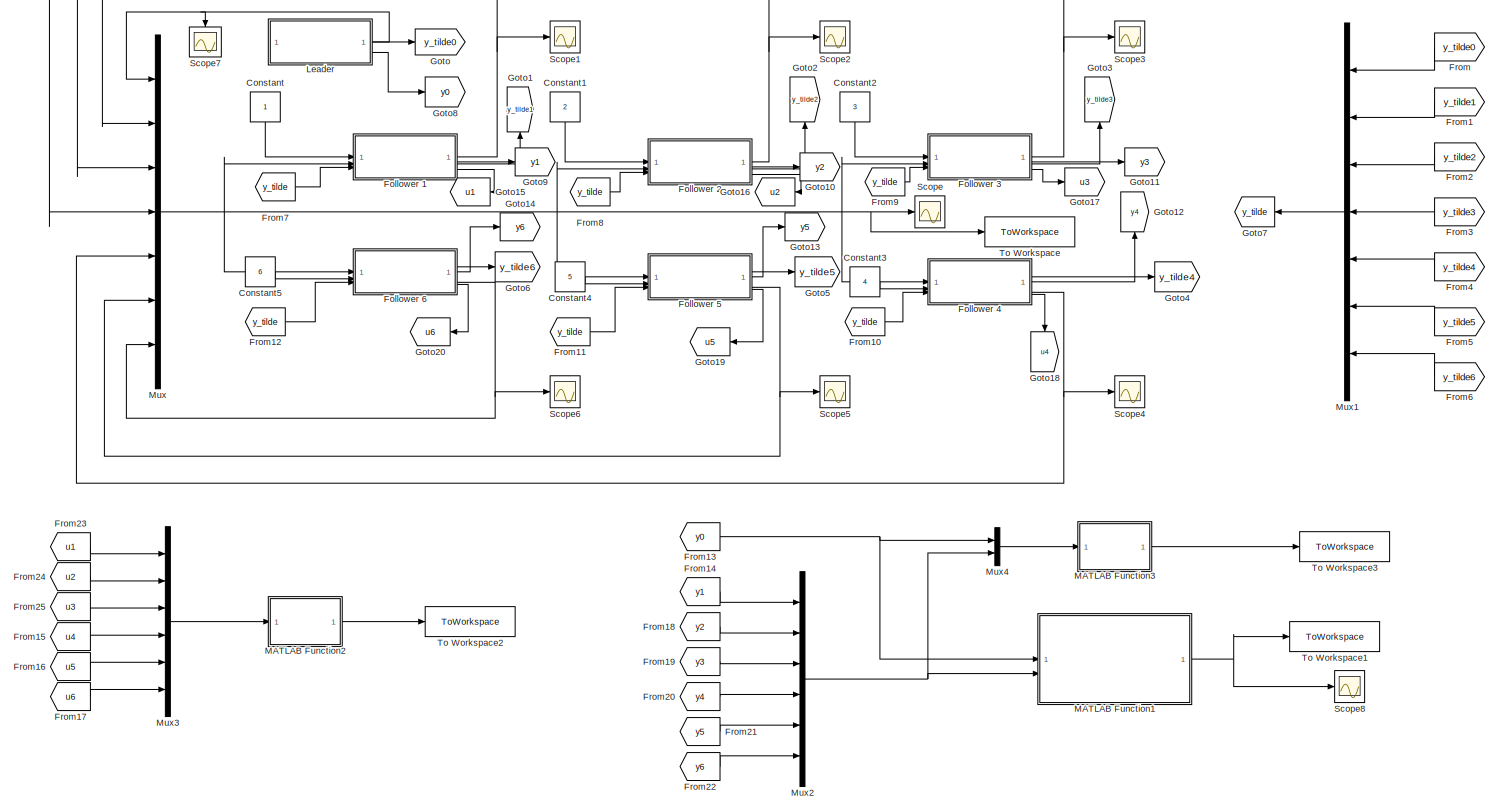
[diagram: root canvas - part 1/1, most of the canvas]
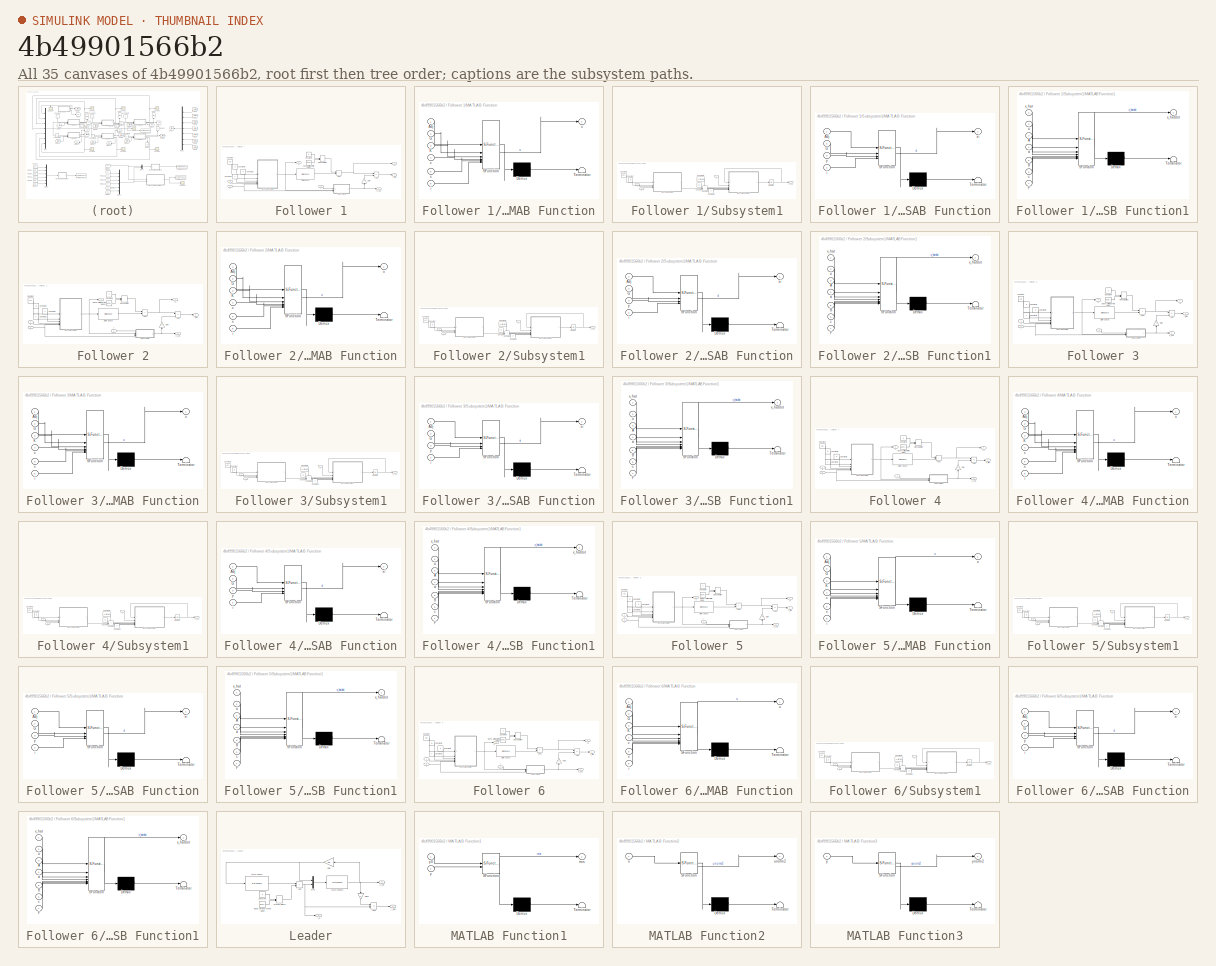
[diagram: thumbnail index - all 35 canvases of the model, root first then tree order]
MODEL slx_4b49901566b2
KIND model
CONFIG AbsTol = auto
CONFIG EnableMultiTasking = off
CONFIG FixedStep = auto
CONFIG MaxStep = auto
CONFIG MinStep = auto
CONFIG RelTol = 1e-3
CONFIG SampleTimeConstraint = Unconstrained
CONFIG SolverName = VariableStepAuto
CONFIG StartTime = 0.0
CONFIG StopTime = tfin
BLOCK [Constant] Constant
  NameLocation = left
BLOCK [Constant] Constant1
  NameLocation = left
  Value = 2
BLOCK [Constant] Constant2
  NameLocation = left
  Value = 3
BLOCK [Constant] Constant3
  Value = 4
BLOCK [Constant] Constant4
  Value = 5
BLOCK [Constant] Constant5
  Value = 6
BLOCK [SubSystem] Follower 1
BLOCK [Sum] Follower 1/Add
  IconShape = rectangular
  Inputs = +-
BLOCK [Sum] Follower 1/Add1
  IconShape = rectangular
BLOCK [Reference] Follower 1/Band-Limited White Noise  REF=simulink/Sources/Band-Limited
White Noise
  SourceBlock = simulink/Sources/Band-Limited\nWhite Noise
  SourceType = Band-Limited White Noise.
BLOCK [Constant] Follower 1/Constant
  Value = Adj
  VectorParams1D = off
BLOCK [Constant] Follower 1/Constant1
  Value = c
BLOCK [Constant] Follower 1/Constant2
  Value = K
  VectorParams1D = off
BLOCK [Constant] Follower 1/Constant3
  Value = G
BLOCK [Constant] Follower 1/Constant4
  Value = 0
BLOCK [Gain] Follower 1/Gain
  Gain = C
  Multiplication = Matrix(K*u)
  NameLocation = right
BLOCK [SubSystem] Follower 1/MATLAB Function
  ErrorFcn = Stateflow.Translate.translate
  PermitHierarchicalResolution = ExplicitOnly
  SFBlockType = MATLAB Function
  TreatAsAtomicUnit = on
BLOCK [Demux] Follower 1/MATLAB Function/ Demux 
  Outputs = 1
BLOCK [S-Function] Follower 1/MATLAB Function/ SFunction 
  EnableBusSupport = on
  FunctionName = sf_sfun
  PortCounts = [6 2]
  SFcnIsStateOwnerBlock = off
  SFunctionDeploymentMode = off
  Tag = Stateflow S-Function 1
BLOCK [Terminator] Follower 1/MATLAB Function/ Terminator 
BLOCK [Inport] Follower 1/MATLAB Function/Adj
BLOCK [Inport] Follower 1/MATLAB Function/G
  Port = 2
BLOCK [Inport] Follower 1/MATLAB Function/K
  Port = 3
BLOCK [Inport] Follower 1/MATLAB Function/c
  Port = 4
BLOCK [Inport] Follower 1/MATLAB Function/i
  Port = 6
BLOCK [Outport] Follower 1/MATLAB Function/u
BLOCK [Inport] Follower 1/MATLAB Function/x
  Port = 5
BLOCK [ManualSwitch] Follower 1/Manual Switch
  CurrentSetting = 0
BLOCK [StateSpace] Follower 1/State-Space
  A = A-B*Ko
  B = B
  C = C
  D = 0
  InitialCondition = xi_0
BLOCK [SubSystem] Follower 1/Subsystem1
BLOCK [Constant] Follower 1/Subsystem1/Constant
  Value = G
  VectorParams1D = off
BLOCK [Constant] Follower 1/Subsystem1/Constant1
  Value = Adj
BLOCK [Constant] Follower 1/Subsystem1/Constant2
  Value = A-B*Ko
  VectorParams1D = off
BLOCK [Constant] Follower 1/Subsystem1/Constant3
  Value = c
BLOCK [Constant] Follower 1/Subsystem1/Constant4
  Value = F
  VectorParams1D = off
BLOCK [Constant] Follower 1/Subsystem1/Constant5
  Value = B
  VectorParams1D = off
BLOCK [Integrator] Follower 1/Subsystem1/Integrator
  InitialCondition = [0 0]'
BLOCK [SubSystem] Follower 1/Subsystem1/MATLAB Function
  ErrorFcn = Stateflow.Translate.translate
  PermitHierarchicalResolution = ExplicitOnly
  SFBlockType = MATLAB Function
  TreatAsAtomicUnit = on
BLOCK [Demux] Follower 1/Subsystem1/MATLAB Function/ Demux 
  Outputs = 1
BLOCK [S-Function] Follower 1/Subsystem1/MATLAB Function/ SFunction 
  EnableBusSupport = on
  FunctionName = sf_sfun
  PortCounts = [4 2]
  SFcnIsStateOwnerBlock = off
  SFunctionDeploymentMode = off
  Tag = Stateflow S-Function 2
BLOCK [Terminator] Follower 1/Subsystem1/MATLAB Function/ Terminator 
BLOCK [Inport] Follower 1/Subsystem1/MATLAB Function/Adj
BLOCK [Inport] Follower 1/Subsystem1/MATLAB Function/G
  Port = 2
BLOCK [Inport] Follower 1/Subsystem1/MATLAB Function/i
  Port = 4
BLOCK [Outport] Follower 1/Subsystem1/MATLAB Function/xi
BLOCK [Inport] Follower 1/Subsystem1/MATLAB Function/y
  Port = 3
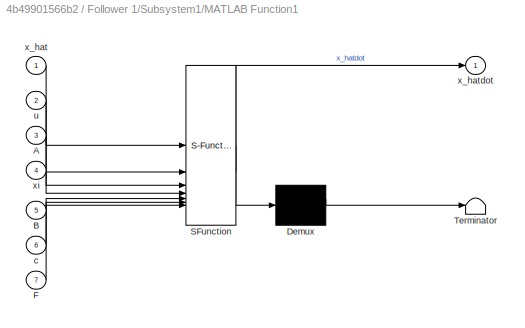
BLOCK [SubSystem] Follower 1/Subsystem1/MATLAB Function1
  ErrorFcn = Stateflow.Translate.translate
  PermitHierarchicalResolution = ExplicitOnly
  SFBlockType = MATLAB Function
  TreatAsAtomicUnit = on
BLOCK [Demux] Follower 1/Subsystem1/MATLAB Function1/ Demux 
  Outputs = 1
BLOCK [S-Function] Follower 1/Subsystem1/MATLAB Function1/ SFunction 
  EnableBusSupport = on
  FunctionName = sf_sfun
  PortCounts = [7 2]
  SFcnIsStateOwnerBlock = off
  SFunctionDeploymentMode = off
  Tag = Stateflow S-Function 13
BLOCK [Terminator] Follower 1/Subsystem1/MATLAB Function1/ Terminator 
BLOCK [Inport] Follower 1/Subsystem1/MATLAB Function1/A
  Port = 3
BLOCK [Inport] Follower 1/Subsystem1/MATLAB Function1/B
  Port = 5
BLOCK [Inport] Follower 1/Subsystem1/MATLAB Function1/F
  Port = 7
BLOCK [Inport] Follower 1/Subsystem1/MATLAB Function1/c
  Port = 6
BLOCK [Inport] Follower 1/Subsystem1/MATLAB Function1/u
  Port = 2
BLOCK [Inport] Follower 1/Subsystem1/MATLAB Function1/x_hat
BLOCK [Outport] Follower 1/Subsystem1/MATLAB Function1/x_hatdot
BLOCK [Inport] Follower 1/Subsystem1/MATLAB Function1/xi
  Port = 4
BLOCK [Inport] Follower 1/Subsystem1/i
  Port = 3
BLOCK [Inport] Follower 1/Subsystem1/u
  Port = 2
BLOCK [Outport] Follower 1/Subsystem1/x_hat
BLOCK [Inport] Follower 1/Subsystem1/y
BLOCK [Inport] Follower 1/i
BLOCK [Outport] Follower 1/u
  Port = 4
BLOCK [Inport] Follower 1/x
  Port = 2
BLOCK [Outport] Follower 1/x_hat
BLOCK [Inport] Follower 1/y
  Port = 3
BLOCK [Outport] Follower 1/y1
  Port = 3
BLOCK [Outport] Follower 1/y_tilde
  Port = 2
BLOCK [SubSystem] Follower 2
BLOCK [Sum] Follower 2/Add
  IconShape = rectangular
  Inputs = +-
BLOCK [Sum] Follower 2/Add1
  IconShape = rectangular
BLOCK [Reference] Follower 2/Band-Limited White Noise1  REF=simulink/Sources/Band-Limited
White Noise
  SourceBlock = simulink/Sources/Band-Limited\nWhite Noise
  SourceType = Band-Limited White Noise.
BLOCK [Constant] Follower 2/Constant
  Value = Adj
  VectorParams1D = off
BLOCK [Constant] Follower 2/Constant1
  Value = c
BLOCK [Constant] Follower 2/Constant2
  Value = K
  VectorParams1D = off
BLOCK [Constant] Follower 2/Constant3
  Value = G
BLOCK [Constant] Follower 2/Constant4
  Value = 0
BLOCK [Gain] Follower 2/Gain
  Gain = C
  Multiplication = Matrix(K*u)
  NameLocation = right
BLOCK [SubSystem] Follower 2/MATLAB Function
  ErrorFcn = Stateflow.Translate.translate
  PermitHierarchicalResolution = ExplicitOnly
  SFBlockType = MATLAB Function
  TreatAsAtomicUnit = on
BLOCK [Demux] Follower 2/MATLAB Function/ Demux 
  Outputs = 1
BLOCK [S-Function] Follower 2/MATLAB Function/ SFunction 
  EnableBusSupport = on
  FunctionName = sf_sfun
  PortCounts = [6 2]
  SFcnIsStateOwnerBlock = off
  SFunctionDeploymentMode = off
  Tag = Stateflow S-Function 19
BLOCK [Terminator] Follower 2/MATLAB Function/ Terminator 
BLOCK [Inport] Follower 2/MATLAB Function/Adj
BLOCK [Inport] Follower 2/MATLAB Function/G
  Port = 2
BLOCK [Inport] Follower 2/MATLAB Function/K
  Port = 3
BLOCK [Inport] Follower 2/MATLAB Function/c
  Port = 4
BLOCK [Inport] Follower 2/MATLAB Function/i
  Port = 6
BLOCK [Outport] Follower 2/MATLAB Function/u
BLOCK [Inport] Follower 2/MATLAB Function/x
  Port = 5
BLOCK [ManualSwitch] Follower 2/Manual Switch
  CurrentSetting = 0
BLOCK [StateSpace] Follower 2/State-Space
  A = A-B*Ko
  B = B
  C = C
  D = 0
  InitialCondition = xi_0
BLOCK [SubSystem] Follower 2/Subsystem1
BLOCK [Constant] Follower 2/Subsystem1/Constant
  Value = G
  VectorParams1D = off
BLOCK [Constant] Follower 2/Subsystem1/Constant1
  Value = Adj
BLOCK [Constant] Follower 2/Subsystem1/Constant2
  Value = A-B*Ko
  VectorParams1D = off
BLOCK [Constant] Follower 2/Subsystem1/Constant3
  Value = c
BLOCK [Constant] Follower 2/Subsystem1/Constant4
  Value = F
  VectorParams1D = off
BLOCK [Constant] Follower 2/Subsystem1/Constant5
  Value = B
  VectorParams1D = off
BLOCK [Integrator] Follower 2/Subsystem1/Integrator
  InitialCondition = [0 0]'
BLOCK [SubSystem] Follower 2/Subsystem1/MATLAB Function
  ErrorFcn = Stateflow.Translate.translate
  PermitHierarchicalResolution = ExplicitOnly
  SFBlockType = MATLAB Function
  TreatAsAtomicUnit = on
BLOCK [Demux] Follower 2/Subsystem1/MATLAB Function/ Demux 
  Outputs = 1
BLOCK [S-Function] Follower 2/Subsystem1/MATLAB Function/ SFunction 
  EnableBusSupport = on
  FunctionName = sf_sfun
  PortCounts = [4 2]
  SFcnIsStateOwnerBlock = off
  SFunctionDeploymentMode = off
  Tag = Stateflow S-Function 20
BLOCK [Terminator] Follower 2/Subsystem1/MATLAB Function/ Terminator 
BLOCK [Inport] Follower 2/Subsystem1/MATLAB Function/Adj
BLOCK [Inport] Follower 2/Subsystem1/MATLAB Function/G
  Port = 2
BLOCK [Inport] Follower 2/Subsystem1/MATLAB Function/i
  Port = 4
BLOCK [Outport] Follower 2/Subsystem1/MATLAB Function/xi
BLOCK [Inport] Follower 2/Subsystem1/MATLAB Function/y
  Port = 3
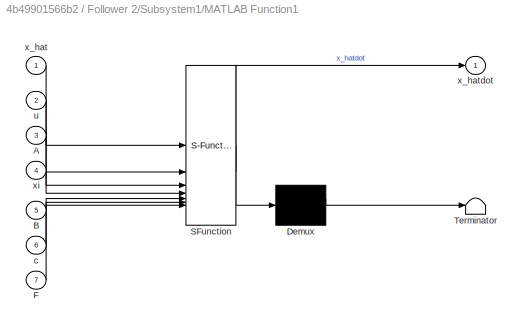
BLOCK [SubSystem] Follower 2/Subsystem1/MATLAB Function1
  ErrorFcn = Stateflow.Translate.translate
  PermitHierarchicalResolution = ExplicitOnly
  SFBlockType = MATLAB Function
  TreatAsAtomicUnit = on
BLOCK [Demux] Follower 2/Subsystem1/MATLAB Function1/ Demux 
  Outputs = 1
BLOCK [S-Function] Follower 2/Subsystem1/MATLAB Function1/ SFunction 
  EnableBusSupport = on
  FunctionName = sf_sfun
  PortCounts = [7 2]
  SFcnIsStateOwnerBlock = off
  SFunctionDeploymentMode = off
  Tag = Stateflow S-Function 21
BLOCK [Terminator] Follower 2/Subsystem1/MATLAB Function1/ Terminator 
BLOCK [Inport] Follower 2/Subsystem1/MATLAB Function1/A
  Port = 3
BLOCK [Inport] Follower 2/Subsystem1/MATLAB Function1/B
  Port = 5
BLOCK [Inport] Follower 2/Subsystem1/MATLAB Function1/F
  Port = 7
BLOCK [Inport] Follower 2/Subsystem1/MATLAB Function1/c
  Port = 6
BLOCK [Inport] Follower 2/Subsystem1/MATLAB Function1/u
  Port = 2
BLOCK [Inport] Follower 2/Subsystem1/MATLAB Function1/x_hat
BLOCK [Outport] Follower 2/Subsystem1/MATLAB Function1/x_hatdot
BLOCK [Inport] Follower 2/Subsystem1/MATLAB Function1/xi
  Port = 4
BLOCK [Inport] Follower 2/Subsystem1/i
  Port = 3
BLOCK [Inport] Follower 2/Subsystem1/u
  Port = 2
BLOCK [Outport] Follower 2/Subsystem1/x_hat
BLOCK [Inport] Follower 2/Subsystem1/y
BLOCK [Inport] Follower 2/i
BLOCK [Outport] Follower 2/u
  Port = 4
BLOCK [Inport] Follower 2/x
  Port = 2
BLOCK [Outport] Follower 2/x_hat
BLOCK [Inport] Follower 2/y
  Port = 3
BLOCK [Outport] Follower 2/y2
  Port = 3
BLOCK [Outport] Follower 2/y_tilde
  Port = 2
BLOCK [SubSystem] Follower 3
BLOCK [Sum] Follower 3/Add
  IconShape = rectangular
  Inputs = +-
BLOCK [Sum] Follower 3/Add1
  IconShape = rectangular
BLOCK [Reference] Follower 3/Band-Limited White Noise  REF=simulink/Sources/Band-Limited
White Noise
  SourceBlock = simulink/Sources/Band-Limited\nWhite Noise
  SourceType = Band-Limited White Noise.
BLOCK [Constant] Follower 3/Constant
  Value = Adj
  VectorParams1D = off
BLOCK [Constant] Follower 3/Constant1
  Value = c
BLOCK [Constant] Follower 3/Constant2
  Value = K
  VectorParams1D = off
BLOCK [Constant] Follower 3/Constant3
  Value = G
BLOCK [Constant] Follower 3/Constant4
  Value = 0
BLOCK [Gain] Follower 3/Gain
  Gain = C
  Multiplication = Matrix(K*u)
  NameLocation = right
BLOCK [SubSystem] Follower 3/MATLAB Function
  ErrorFcn = Stateflow.Translate.translate
  PermitHierarchicalResolution = ExplicitOnly
  SFBlockType = MATLAB Function
  TreatAsAtomicUnit = on
BLOCK [Demux] Follower 3/MATLAB Function/ Demux 
  Outputs = 1
BLOCK [S-Function] Follower 3/MATLAB Function/ SFunction 
  EnableBusSupport = on
  FunctionName = sf_sfun
  PortCounts = [6 2]
  SFcnIsStateOwnerBlock = off
  SFunctionDeploymentMode = off
  Tag = Stateflow S-Function 3
BLOCK [Terminator] Follower 3/MATLAB Function/ Terminator 
BLOCK [Inport] Follower 3/MATLAB Function/Adj
BLOCK [Inport] Follower 3/MATLAB Function/G
  Port = 2
BLOCK [Inport] Follower 3/MATLAB Function/K
  Port = 3
BLOCK [Inport] Follower 3/MATLAB Function/c
  Port = 4
BLOCK [Inport] Follower 3/MATLAB Function/i
  Port = 6
BLOCK [Outport] Follower 3/MATLAB Function/u
BLOCK [Inport] Follower 3/MATLAB Function/x
  Port = 5
BLOCK [ManualSwitch] Follower 3/Manual Switch
  CurrentSetting = 0
BLOCK [StateSpace] Follower 3/State-Space
  A = A-B*Ko
  B = B
  C = C
  D = 0
  InitialCondition = xi_0
BLOCK [SubSystem] Follower 3/Subsystem1
BLOCK [Constant] Follower 3/Subsystem1/Constant
  Value = G
  VectorParams1D = off
BLOCK [Constant] Follower 3/Subsystem1/Constant1
  Value = Adj
BLOCK [Constant] Follower 3/Subsystem1/Constant2
  Value = A-B*Ko
  VectorParams1D = off
BLOCK [Constant] Follower 3/Subsystem1/Constant3
  Value = c
BLOCK [Constant] Follower 3/Subsystem1/Constant4
  Value = F
  VectorParams1D = off
BLOCK [Constant] Follower 3/Subsystem1/Constant5
  Value = B
  VectorParams1D = off
BLOCK [Integrator] Follower 3/Subsystem1/Integrator
  InitialCondition = [0 0]'
BLOCK [SubSystem] Follower 3/Subsystem1/MATLAB Function
  ErrorFcn = Stateflow.Translate.translate
  PermitHierarchicalResolution = ExplicitOnly
  SFBlockType = MATLAB Function
  TreatAsAtomicUnit = on
BLOCK [Demux] Follower 3/Subsystem1/MATLAB Function/ Demux 
  Outputs = 1
BLOCK [S-Function] Follower 3/Subsystem1/MATLAB Function/ SFunction 
  EnableBusSupport = on
  FunctionName = sf_sfun
  PortCounts = [4 2]
  SFcnIsStateOwnerBlock = off
  SFunctionDeploymentMode = off
  Tag = Stateflow S-Function 4
BLOCK [Terminator] Follower 3/Subsystem1/MATLAB Function/ Terminator 
BLOCK [Inport] Follower 3/Subsystem1/MATLAB Function/Adj
BLOCK [Inport] Follower 3/Subsystem1/MATLAB Function/G
  Port = 2
BLOCK [Inport] Follower 3/Subsystem1/MATLAB Function/i
  Port = 4
BLOCK [Outport] Follower 3/Subsystem1/MATLAB Function/xi
BLOCK [Inport] Follower 3/Subsystem1/MATLAB Function/y
  Port = 3
BLOCK [SubSystem] Follower 3/Subsystem1/MATLAB Function1
  ErrorFcn = Stateflow.Translate.translate
  PermitHierarchicalResolution = ExplicitOnly
  SFBlockType = MATLAB Function
  TreatAsAtomicUnit = on
BLOCK [Demux] Follower 3/Subsystem1/MATLAB Function1/ Demux 
  Outputs = 1
BLOCK [S-Function] Follower 3/Subsystem1/MATLAB Function1/ SFunction 
  EnableBusSupport = on
  FunctionName = sf_sfun
  PortCounts = [7 2]
  SFcnIsStateOwnerBlock = off
  SFunctionDeploymentMode = off
  Tag = Stateflow S-Function 5
BLOCK [Terminator] Follower 3/Subsystem1/MATLAB Function1/ Terminator 
BLOCK [Inport] Follower 3/Subsystem1/MATLAB Function1/A
  Port = 3
BLOCK [Inport] Follower 3/Subsystem1/MATLAB Function1/B
  Port = 5
BLOCK [Inport] Follower 3/Subsystem1/MATLAB Function1/F
  Port = 7
BLOCK [Inport] Follower 3/Subsystem1/MATLAB Function1/c
  Port = 6
BLOCK [Inport] Follower 3/Subsystem1/MATLAB Function1/u
  Port = 2
BLOCK [Inport] Follower 3/Subsystem1/MATLAB Function1/x_hat
BLOCK [Outport] Follower 3/Subsystem1/MATLAB Function1/x_hatdot
BLOCK [Inport] Follower 3/Subsystem1/MATLAB Function1/xi
  Port = 4
BLOCK [Inport] Follower 3/Subsystem1/i
  Port = 3
BLOCK [Inport] Follower 3/Subsystem1/u
  Port = 2
BLOCK [Outport] Follower 3/Subsystem1/x_hat
BLOCK [Inport] Follower 3/Subsystem1/y
BLOCK [Inport] Follower 3/i
BLOCK [Outport] Follower 3/u
  Port = 4
BLOCK [Inport] Follower 3/x
  Port = 2
BLOCK [Outport] Follower 3/x_hat
BLOCK [Inport] Follower 3/y
  Port = 3
BLOCK [Outport] Follower 3/y3
  Port = 3
BLOCK [Outport] Follower 3/y_tilde
  Port = 2
BLOCK [SubSystem] Follower 4
BLOCK [Sum] Follower 4/Add
  IconShape = rectangular
  Inputs = +-
BLOCK [Sum] Follower 4/Add1
  IconShape = rectangular
BLOCK [Reference] Follower 4/Band-Limited White Noise  REF=simulink/Sources/Band-Limited
White Noise
  SourceBlock = simulink/Sources/Band-Limited\nWhite Noise
  SourceType = Band-Limited White Noise.
BLOCK [Constant] Follower 4/Constant
  Value = Adj
  VectorParams1D = off
BLOCK [Constant] Follower 4/Constant1
  Value = c
BLOCK [Constant] Follower 4/Constant2
  Value = K
  VectorParams1D = off
BLOCK [Constant] Follower 4/Constant3
  Value = G
BLOCK [Constant] Follower 4/Constant4
  Value = 0
BLOCK [Gain] Follower 4/Gain
  Gain = C
  Multiplication = Matrix(K*u)
  NameLocation = right
BLOCK [SubSystem] Follower 4/MATLAB Function
  ErrorFcn = Stateflow.Translate.translate
  PermitHierarchicalResolution = ExplicitOnly
  SFBlockType = MATLAB Function
  TreatAsAtomicUnit = on
BLOCK [Demux] Follower 4/MATLAB Function/ Demux 
  Outputs = 1
BLOCK [S-Function] Follower 4/MATLAB Function/ SFunction 
  EnableBusSupport = on
  FunctionName = sf_sfun
  PortCounts = [6 2]
  SFcnIsStateOwnerBlock = off
  SFunctionDeploymentMode = off
  Tag = Stateflow S-Function 6
BLOCK [Terminator] Follower 4/MATLAB Function/ Terminator 
BLOCK [Inport] Follower 4/MATLAB Function/Adj
BLOCK [Inport] Follower 4/MATLAB Function/G
  Port = 2
BLOCK [Inport] Follower 4/MATLAB Function/K
  Port = 3
BLOCK [Inport] Follower 4/MATLAB Function/c
  Port = 4
BLOCK [Inport] Follower 4/MATLAB Function/i
  Port = 6
BLOCK [Outport] Follower 4/MATLAB Function/u
BLOCK [Inport] Follower 4/MATLAB Function/x
  Port = 5
BLOCK [ManualSwitch] Follower 4/Manual Switch
  CurrentSetting = 0
BLOCK [StateSpace] Follower 4/State-Space
  A = A-B*Ko
  B = B
  C = C
  D = 0
  InitialCondition = xi_0
BLOCK [SubSystem] Follower 4/Subsystem1
BLOCK [Constant] Follower 4/Subsystem1/Constant
  Value = G
  VectorParams1D = off
BLOCK [Constant] Follower 4/Subsystem1/Constant1
  Value = Adj
BLOCK [Constant] Follower 4/Subsystem1/Constant2
  Value = A-B*Ko
  VectorParams1D = off
BLOCK [Constant] Follower 4/Subsystem1/Constant3
  Value = c
BLOCK [Constant] Follower 4/Subsystem1/Constant4
  Value = F
  VectorParams1D = off
BLOCK [Constant] Follower 4/Subsystem1/Constant5
  Value = B
  VectorParams1D = off
BLOCK [Integrator] Follower 4/Subsystem1/Integrator
  InitialCondition = [0 0]'
BLOCK [SubSystem] Follower 4/Subsystem1/MATLAB Function
  ErrorFcn = Stateflow.Translate.translate
  PermitHierarchicalResolution = ExplicitOnly
  SFBlockType = MATLAB Function
  TreatAsAtomicUnit = on
BLOCK [Demux] Follower 4/Subsystem1/MATLAB Function/ Demux 
  Outputs = 1
BLOCK [S-Function] Follower 4/Subsystem1/MATLAB Function/ SFunction 
  EnableBusSupport = on
  FunctionName = sf_sfun
  PortCounts = [4 2]
  SFcnIsStateOwnerBlock = off
  SFunctionDeploymentMode = off
  Tag = Stateflow S-Function 7
BLOCK [Terminator] Follower 4/Subsystem1/MATLAB Function/ Terminator 
BLOCK [Inport] Follower 4/Subsystem1/MATLAB Function/Adj
BLOCK [Inport] Follower 4/Subsystem1/MATLAB Function/G
  Port = 2
BLOCK [Inport] Follower 4/Subsystem1/MATLAB Function/i
  Port = 4
BLOCK [Outport] Follower 4/Subsystem1/MATLAB Function/xi
BLOCK [Inport] Follower 4/Subsystem1/MATLAB Function/y
  Port = 3
BLOCK [SubSystem] Follower 4/Subsystem1/MATLAB Function1
  ErrorFcn = Stateflow.Translate.translate
  PermitHierarchicalResolution = ExplicitOnly
  SFBlockType = MATLAB Function
  TreatAsAtomicUnit = on
BLOCK [Demux] Follower 4/Subsystem1/MATLAB Function1/ Demux 
  Outputs = 1
BLOCK [S-Function] Follower 4/Subsystem1/MATLAB Function1/ SFunction 
  EnableBusSupport = on
  FunctionName = sf_sfun
  PortCounts = [7 2]
  SFcnIsStateOwnerBlock = off
  SFunctionDeploymentMode = off
  Tag = Stateflow S-Function 8
BLOCK [Terminator] Follower 4/Subsystem1/MATLAB Function1/ Terminator 
BLOCK [Inport] Follower 4/Subsystem1/MATLAB Function1/A
  Port = 3
BLOCK [Inport] Follower 4/Subsystem1/MATLAB Function1/B
  Port = 5
BLOCK [Inport] Follower 4/Subsystem1/MATLAB Function1/F
  Port = 7
BLOCK [Inport] Follower 4/Subsystem1/MATLAB Function1/c
  Port = 6
BLOCK [Inport] Follower 4/Subsystem1/MATLAB Function1/u
  Port = 2
BLOCK [Inport] Follower 4/Subsystem1/MATLAB Function1/x_hat
BLOCK [Outport] Follower 4/Subsystem1/MATLAB Function1/x_hatdot
BLOCK [Inport] Follower 4/Subsystem1/MATLAB Function1/xi
  Port = 4
BLOCK [Inport] Follower 4/Subsystem1/i
  Port = 3
BLOCK [Inport] Follower 4/Subsystem1/u
  Port = 2
BLOCK [Outport] Follower 4/Subsystem1/x_hat
BLOCK [Inport] Follower 4/Subsystem1/y
BLOCK [Inport] Follower 4/i
  Port = 2
BLOCK [Outport] Follower 4/u
  Port = 4
BLOCK [Inport] Follower 4/x
BLOCK [Outport] Follower 4/x_hat
  Port = 3
BLOCK [Inport] Follower 4/y
  Port = 3
BLOCK [Outport] Follower 4/y4
BLOCK [Outport] Follower 4/y_tilde
  Port = 2
BLOCK [SubSystem] Follower 5
BLOCK [Sum] Follower 5/Add
  IconShape = rectangular
  Inputs = +-
BLOCK [Sum] Follower 5/Add1
  IconShape = rectangular
BLOCK [Reference] Follower 5/Band-Limited White Noise  REF=simulink/Sources/Band-Limited
White Noise
  SourceBlock = simulink/Sources/Band-Limited\nWhite Noise
  SourceType = Band-Limited White Noise.
BLOCK [Constant] Follower 5/Constant
  Value = Adj
  VectorParams1D = off
BLOCK [Constant] Follower 5/Constant1
  Value = c
BLOCK [Constant] Follower 5/Constant2
  Value = K
  VectorParams1D = off
BLOCK [Constant] Follower 5/Constant3
  Value = G
BLOCK [Constant] Follower 5/Constant4
  Value = 0
BLOCK [Gain] Follower 5/Gain
  Gain = C
  Multiplication = Matrix(K*u)
  NameLocation = right
BLOCK [SubSystem] Follower 5/MATLAB Function
  ErrorFcn = Stateflow.Translate.translate
  PermitHierarchicalResolution = ExplicitOnly
  SFBlockType = MATLAB Function
  TreatAsAtomicUnit = on
BLOCK [Demux] Follower 5/MATLAB Function/ Demux 
  Outputs = 1
BLOCK [S-Function] Follower 5/MATLAB Function/ SFunction 
  EnableBusSupport = on
  FunctionName = sf_sfun
  PortCounts = [6 2]
  SFcnIsStateOwnerBlock = off
  SFunctionDeploymentMode = off
  Tag = Stateflow S-Function 9
BLOCK [Terminator] Follower 5/MATLAB Function/ Terminator 
BLOCK [Inport] Follower 5/MATLAB Function/Adj
BLOCK [Inport] Follower 5/MATLAB Function/G
  Port = 2
BLOCK [Inport] Follower 5/MATLAB Function/K
  Port = 3
BLOCK [Inport] Follower 5/MATLAB Function/c
  Port = 4
BLOCK [Inport] Follower 5/MATLAB Function/i
  Port = 6
BLOCK [Outport] Follower 5/MATLAB Function/u
BLOCK [Inport] Follower 5/MATLAB Function/x
  Port = 5
BLOCK [ManualSwitch] Follower 5/Manual Switch
  CurrentSetting = 0
BLOCK [StateSpace] Follower 5/State-Space
  A = A-B*Ko
  B = B
  C = C
  D = 0
  InitialCondition = xi_0
BLOCK [SubSystem] Follower 5/Subsystem1
BLOCK [Constant] Follower 5/Subsystem1/Constant
  Value = G
  VectorParams1D = off
BLOCK [Constant] Follower 5/Subsystem1/Constant1
  Value = Adj
BLOCK [Constant] Follower 5/Subsystem1/Constant2
  Value = A-B*Ko
  VectorParams1D = off
BLOCK [Constant] Follower 5/Subsystem1/Constant3
  Value = c
BLOCK [Constant] Follower 5/Subsystem1/Constant4
  Value = F
  VectorParams1D = off
BLOCK [Constant] Follower 5/Subsystem1/Constant5
  Value = B
  VectorParams1D = off
BLOCK [Integrator] Follower 5/Subsystem1/Integrator
  InitialCondition = [0 0]'
BLOCK [SubSystem] Follower 5/Subsystem1/MATLAB Function
  ErrorFcn = Stateflow.Translate.translate
  PermitHierarchicalResolution = ExplicitOnly
  SFBlockType = MATLAB Function
  TreatAsAtomicUnit = on
BLOCK [Demux] Follower 5/Subsystem1/MATLAB Function/ Demux 
  Outputs = 1
BLOCK [S-Function] Follower 5/Subsystem1/MATLAB Function/ SFunction 
  EnableBusSupport = on
  FunctionName = sf_sfun
  PortCounts = [4 2]
  SFcnIsStateOwnerBlock = off
  SFunctionDeploymentMode = off
  Tag = Stateflow S-Function 10
BLOCK [Terminator] Follower 5/Subsystem1/MATLAB Function/ Terminator 
BLOCK [Inport] Follower 5/Subsystem1/MATLAB Function/Adj
BLOCK [Inport] Follower 5/Subsystem1/MATLAB Function/G
  Port = 2
BLOCK [Inport] Follower 5/Subsystem1/MATLAB Function/i
  Port = 4
BLOCK [Outport] Follower 5/Subsystem1/MATLAB Function/xi
BLOCK [Inport] Follower 5/Subsystem1/MATLAB Function/y
  Port = 3
BLOCK [SubSystem] Follower 5/Subsystem1/MATLAB Function1
  ErrorFcn = Stateflow.Translate.translate
  PermitHierarchicalResolution = ExplicitOnly
  SFBlockType = MATLAB Function
  TreatAsAtomicUnit = on
BLOCK [Demux] Follower 5/Subsystem1/MATLAB Function1/ Demux 
  Outputs = 1
BLOCK [S-Function] Follower 5/Subsystem1/MATLAB Function1/ SFunction 
  EnableBusSupport = on
  FunctionName = sf_sfun
  PortCounts = [7 2]
  SFcnIsStateOwnerBlock = off
  SFunctionDeploymentMode = off
  Tag = Stateflow S-Function 11
BLOCK [Terminator] Follower 5/Subsystem1/MATLAB Function1/ Terminator 
BLOCK [Inport] Follower 5/Subsystem1/MATLAB Function1/A
  Port = 3
BLOCK [Inport] Follower 5/Subsystem1/MATLAB Function1/B
  Port = 5
BLOCK [Inport] Follower 5/Subsystem1/MATLAB Function1/F
  Port = 7
BLOCK [Inport] Follower 5/Subsystem1/MATLAB Function1/c
  Port = 6
BLOCK [Inport] Follower 5/Subsystem1/MATLAB Function1/u
  Port = 2
BLOCK [Inport] Follower 5/Subsystem1/MATLAB Function1/x_hat
BLOCK [Outport] Follower 5/Subsystem1/MATLAB Function1/x_hatdot
BLOCK [Inport] Follower 5/Subsystem1/MATLAB Function1/xi
  Port = 4
BLOCK [Inport] Follower 5/Subsystem1/i
  Port = 3
BLOCK [Inport] Follower 5/Subsystem1/u
  Port = 2
BLOCK [Outport] Follower 5/Subsystem1/x_hat
BLOCK [Inport] Follower 5/Subsystem1/y
BLOCK [Inport] Follower 5/i
  Port = 2
BLOCK [Outport] Follower 5/u
  Port = 4
BLOCK [Inport] Follower 5/x
BLOCK [Outport] Follower 5/x_hat
  Port = 3
BLOCK [Inport] Follower 5/y
  Port = 3
BLOCK [Outport] Follower 5/y5
BLOCK [Outport] Follower 5/y_tilde
  Port = 2
BLOCK [SubSystem] Follower 6
BLOCK [Sum] Follower 6/Add
  IconShape = rectangular
  Inputs = +-
BLOCK [Sum] Follower 6/Add1
  IconShape = rectangular
BLOCK [Reference] Follower 6/Band-Limited White Noise  REF=simulink/Sources/Band-Limited
White Noise
  SourceBlock = simulink/Sources/Band-Limited\nWhite Noise
  SourceType = Band-Limited White Noise.
BLOCK [Constant] Follower 6/Constant
  Value = Adj
  VectorParams1D = off
BLOCK [Constant] Follower 6/Constant1
  Value = c
BLOCK [Constant] Follower 6/Constant2
  Value = K
  VectorParams1D = off
BLOCK [Constant] Follower 6/Constant3
  Value = G
BLOCK [Constant] Follower 6/Constant4
  Value = 0
BLOCK [Gain] Follower 6/Gain1
  Gain = C
  Multiplication = Matrix(K*u)
  NameLocation = right
BLOCK [SubSystem] Follower 6/MATLAB Function
  ErrorFcn = Stateflow.Translate.translate
  PermitHierarchicalResolution = ExplicitOnly
  SFBlockType = MATLAB Function
  TreatAsAtomicUnit = on
BLOCK [Demux] Follower 6/MATLAB Function/ Demux 
  Outputs = 1
BLOCK [S-Function] Follower 6/MATLAB Function/ SFunction 
  EnableBusSupport = on
  FunctionName = sf_sfun
  PortCounts = [6 2]
  SFcnIsStateOwnerBlock = off
  SFunctionDeploymentMode = off
  Tag = Stateflow S-Function 12
BLOCK [Terminator] Follower 6/MATLAB Function/ Terminator 
BLOCK [Inport] Follower 6/MATLAB Function/Adj
BLOCK [Inport] Follower 6/MATLAB Function/G
  Port = 2
BLOCK [Inport] Follower 6/MATLAB Function/K
  Port = 3
BLOCK [Inport] Follower 6/MATLAB Function/c
  Port = 4
BLOCK [Inport] Follower 6/MATLAB Function/i
  Port = 6
BLOCK [Outport] Follower 6/MATLAB Function/u
BLOCK [Inport] Follower 6/MATLAB Function/x
  Port = 5
BLOCK [ManualSwitch] Follower 6/Manual Switch
  CurrentSetting = 0
BLOCK [StateSpace] Follower 6/State-Space
  A = A-B*Ko
  B = B
  C = C
  D = 0
  InitialCondition = xi_0
BLOCK [SubSystem] Follower 6/Subsystem1
BLOCK [Constant] Follower 6/Subsystem1/Constant
  Value = G
  VectorParams1D = off
BLOCK [Constant] Follower 6/Subsystem1/Constant1
  Value = Adj
BLOCK [Constant] Follower 6/Subsystem1/Constant2
  Value = A-B*Ko
  VectorParams1D = off
BLOCK [Constant] Follower 6/Subsystem1/Constant3
  Value = c
BLOCK [Constant] Follower 6/Subsystem1/Constant4
  Value = F
  VectorParams1D = off
BLOCK [Constant] Follower 6/Subsystem1/Constant5
  Value = B
  VectorParams1D = off
BLOCK [Integrator] Follower 6/Subsystem1/Integrator
  InitialCondition = [0 0]'
BLOCK [SubSystem] Follower 6/Subsystem1/MATLAB Function
  ErrorFcn = Stateflow.Translate.translate
  PermitHierarchicalResolution = ExplicitOnly
  SFBlockType = MATLAB Function
  TreatAsAtomicUnit = on
BLOCK [Demux] Follower 6/Subsystem1/MATLAB Function/ Demux 
  Outputs = 1
BLOCK [S-Function] Follower 6/Subsystem1/MATLAB Function/ SFunction 
  EnableBusSupport = on
  FunctionName = sf_sfun
  PortCounts = [4 2]
  SFcnIsStateOwnerBlock = off
  SFunctionDeploymentMode = off
  Tag = Stateflow S-Function 14
BLOCK [Terminator] Follower 6/Subsystem1/MATLAB Function/ Terminator 
BLOCK [Inport] Follower 6/Subsystem1/MATLAB Function/Adj
BLOCK [Inport] Follower 6/Subsystem1/MATLAB Function/G
  Port = 2
BLOCK [Inport] Follower 6/Subsystem1/MATLAB Function/i
  Port = 4
BLOCK [Outport] Follower 6/Subsystem1/MATLAB Function/xi
BLOCK [Inport] Follower 6/Subsystem1/MATLAB Function/y
  Port = 3
BLOCK [SubSystem] Follower 6/Subsystem1/MATLAB Function1
  ErrorFcn = Stateflow.Translate.translate
  PermitHierarchicalResolution = ExplicitOnly
  SFBlockType = MATLAB Function
  TreatAsAtomicUnit = on
BLOCK [Demux] Follower 6/Subsystem1/MATLAB Function1/ Demux 
  Outputs = 1
BLOCK [S-Function] Follower 6/Subsystem1/MATLAB Function1/ SFunction 
  EnableBusSupport = on
  FunctionName = sf_sfun
  PortCounts = [7 2]
  SFcnIsStateOwnerBlock = off
  SFunctionDeploymentMode = off
  Tag = Stateflow S-Function 15
BLOCK [Terminator] Follower 6/Subsystem1/MATLAB Function1/ Terminator 
BLOCK [Inport] Follower 6/Subsystem1/MATLAB Function1/A
  Port = 3
BLOCK [Inport] Follower 6/Subsystem1/MATLAB Function1/B
  Port = 5
BLOCK [Inport] Follower 6/Subsystem1/MATLAB Function1/F
  Port = 7
BLOCK [Inport] Follower 6/Subsystem1/MATLAB Function1/c
  Port = 6
BLOCK [Inport] Follower 6/Subsystem1/MATLAB Function1/u
  Port = 2
BLOCK [Inport] Follower 6/Subsystem1/MATLAB Function1/x_hat
BLOCK [Outport] Follower 6/Subsystem1/MATLAB Function1/x_hatdot
BLOCK [Inport] Follower 6/Subsystem1/MATLAB Function1/xi
  Port = 4
BLOCK [Inport] Follower 6/Subsystem1/i
  Port = 3
BLOCK [Inport] Follower 6/Subsystem1/u
  Port = 2
BLOCK [Outport] Follower 6/Subsystem1/x_hat
BLOCK [Inport] Follower 6/Subsystem1/y
BLOCK [Inport] Follower 6/i
  Port = 2
BLOCK [Outport] Follower 6/u
  Port = 4
BLOCK [Inport] Follower 6/x
BLOCK [Outport] Follower 6/x_hat
  Port = 3
BLOCK [Inport] Follower 6/y
  Port = 3
BLOCK [Outport] Follower 6/y6
BLOCK [Outport] Follower 6/y_tilde
  Port = 2
BLOCK [From] From
  GotoTag = y_tilde0
  NameLocation = top
BLOCK [From] From1
  GotoTag = y_tilde1
  NameLocation = top
BLOCK [From] From10
  GotoTag = y_tilde
BLOCK [From] From11
  GotoTag = y_tilde
BLOCK [From] From12
  GotoTag = y_tilde
BLOCK [From] From13
  GotoTag = y0
BLOCK [From] From14
  GotoTag = y1
BLOCK [From] From15
  GotoTag = u4
BLOCK [From] From16
  GotoTag = u5
BLOCK [From] From17
  GotoTag = u6
BLOCK [From] From18
  GotoTag = y2
BLOCK [From] From19
  GotoTag = y3
BLOCK [From] From2
  GotoTag = y_tilde2
  NameLocation = top
BLOCK [From] From20
  GotoTag = y4
BLOCK [From] From21
  GotoTag = y5
BLOCK [From] From22
  GotoTag = y6
BLOCK [From] From23
  GotoTag = u1
BLOCK [From] From24
  GotoTag = u2
BLOCK [From] From25
  GotoTag = u3
BLOCK [From] From3
  GotoTag = y_tilde3
  NameLocation = top
BLOCK [From] From4
  GotoTag = y_tilde4
  NameLocation = top
BLOCK [From] From5
  GotoTag = y_tilde5
  NameLocation = top
BLOCK [From] From6
  GotoTag = y_tilde6
  NameLocation = top
BLOCK [From] From7
  GotoTag = y_tilde
BLOCK [From] From8
  GotoTag = y_tilde
BLOCK [From] From9
  GotoTag = y_tilde
BLOCK [Goto] Goto
  GotoTag = y_tilde0
BLOCK [Goto] Goto1
  GotoTag = y_tilde1
  NameLocation = right
BLOCK [Goto] Goto10
  GotoTag = y2
BLOCK [Goto] Goto11
  GotoTag = y3
BLOCK [Goto] Goto12
  GotoTag = y4
  NameLocation = right
BLOCK [Goto] Goto13
  GotoTag = y5
BLOCK [Goto] Goto14
  GotoTag = y6
BLOCK [Goto] Goto15
  GotoTag = u1
  NameLocation = top
BLOCK [Goto] Goto16
  GotoTag = u2
  NameLocation = top
BLOCK [Goto] Goto17
  GotoTag = u3
BLOCK [Goto] Goto18
  GotoTag = u4
  NameLocation = left
BLOCK [Goto] Goto19
  GotoTag = u5
  NameLocation = top
BLOCK [Goto] Goto2
  GotoTag = y_tilde2
  NameLocation = right
BLOCK [Goto] Goto20
  GotoTag = u6
  NameLocation = top
BLOCK [Goto] Goto3
  GotoTag = y_tilde3
  NameLocation = right
BLOCK [Goto] Goto4
  GotoTag = y_tilde4
BLOCK [Goto] Goto5
  GotoTag = y_tilde5
BLOCK [Goto] Goto6
  GotoTag = y_tilde6
BLOCK [Goto] Goto7
  GotoTag = y_tilde
  NameLocation = top
BLOCK [Goto] Goto8
  GotoTag = y0
BLOCK [Goto] Goto9
  GotoTag = y1
BLOCK [SubSystem] Leader
BLOCK [Sum] Leader/Add
  IconShape = rectangular
BLOCK [Sum] Leader/Add1
  IconShape = rectangular
  Inputs = -+
BLOCK [Reference] Leader/Band-Limited White Noise  REF=simulink/Sources/Band-Limited
White Noise
  SourceBlock = simulink/Sources/Band-Limited\nWhite Noise
  SourceType = Band-Limited White Noise.
BLOCK [Constant] Leader/Constant
  Value = 0
BLOCK [Gain] Leader/Gain
  Gain = -Ko
  Multiplication = Matrix(K*u)
  NameLocation = top
BLOCK [Gain] Leader/Gain1
  Gain = C
  Multiplication = Matrix(K*u)
  NameLocation = left
BLOCK [ManualSwitch] Leader/Manual Switch
BLOCK [Mux] Leader/Mux
  DisplayOption = bar
  Inputs = 2
BLOCK [StateSpace] Leader/State-Space
  A = A
  B = B
  C = C
  D = 0
  InitialCondition = x0_0
BLOCK [StateSpace] Leader/State-Space1
  A = A-L1*C
  B = [B L1]
  C = eye(2)
  D = zeros(2,2)
  InitialCondition = 0
BLOCK [Outport] Leader/x_hat
BLOCK [Outport] Leader/y0
  Port = 3
BLOCK [Outport] Leader/y_tilde
  Port = 2
BLOCK [SubSystem] MATLAB Function1
  ErrorFcn = Stateflow.Translate.translate
  PermitHierarchicalResolution = ExplicitOnly
  SFBlockType = MATLAB Function
  TreatAsAtomicUnit = on
BLOCK [Demux] MATLAB Function1/ Demux 
  Outputs = 1
BLOCK [S-Function] MATLAB Function1/ SFunction 
  EnableBusSupport = on
  FunctionName = sf_sfun
  PortCounts = [2 2]
  SFcnIsStateOwnerBlock = off
  SFunctionDeploymentMode = off
  Tag = Stateflow S-Function 16
BLOCK [Terminator] MATLAB Function1/ Terminator 
BLOCK [Outport] MATLAB Function1/rms
BLOCK [Inport] MATLAB Function1/y
  Port = 2
BLOCK [Inport] MATLAB Function1/y0
BLOCK [SubSystem] MATLAB Function2
  ErrorFcn = Stateflow.Translate.translate
  PermitHierarchicalResolution = ExplicitOnly
  SFBlockType = MATLAB Function
  TreatAsAtomicUnit = on
BLOCK [Demux] MATLAB Function2/ Demux 
  Outputs = 1
BLOCK [S-Function] MATLAB Function2/ SFunction 
  EnableBusSupport = on
  FunctionName = sf_sfun
  PortCounts = [1 2]
  SFcnIsStateOwnerBlock = off
  SFunctionDeploymentMode = off
  Tag = Stateflow S-Function 17
BLOCK [Terminator] MATLAB Function2/ Terminator 
BLOCK [Inport] MATLAB Function2/u
BLOCK [Outport] MATLAB Function2/unorm2
BLOCK [SubSystem] MATLAB Function3
  ErrorFcn = Stateflow.Translate.translate
  PermitHierarchicalResolution = ExplicitOnly
  SFBlockType = MATLAB Function
  TreatAsAtomicUnit = on
BLOCK [Demux] MATLAB Function3/ Demux 
  Outputs = 1
BLOCK [S-Function] MATLAB Function3/ SFunction 
  EnableBusSupport = on
  FunctionName = sf_sfun
  PortCounts = [1 2]
  SFcnIsStateOwnerBlock = off
  SFunctionDeploymentMode = off
  Tag = Stateflow S-Function 18
BLOCK [Terminator] MATLAB Function3/ Terminator 
BLOCK [Inport] MATLAB Function3/y
BLOCK [Outport] MATLAB Function3/ynorm2
BLOCK [Mux] Mux
  DisplayOption = bar
  Inputs = 7
BLOCK [Mux] Mux1
  DisplayOption = bar
  Inputs = 7
  NameLocation = top
BLOCK [Mux] Mux2
  DisplayOption = bar
  Inputs = 6
BLOCK [Mux] Mux3
  DisplayOption = bar
  Inputs = 6
BLOCK [Mux] Mux4
  DisplayOption = bar
  Inputs = 2
BLOCK [Scope] Scope
  Floating = off
  NumInputPorts = 1
  ScopeSpecificationString = Simulink.scopes.TimeScopeBlockCfg('CurrentConfiguration', extmgr.ConfigurationSet(extmgr.Configuration('Core','General UI',true),extmgr.Configuration('Core','Source UI',true),extmgr.Configuration('Sources','WiredSimulink',true,'DataLoggingVariableName','ScopeData1'),extmgr.Configuration('Visuals','Time Domain',true),extmgr.Configuration('Tools','Plot Navigation',true),extmgr.Configuration('Tools',...<+40ch>
BLOCK [Scope] Scope1
  Floating = off
  NumInputPorts = 1
  ScopeSpecificationString = Simulink.scopes.TimeScopeBlockCfg('CurrentConfiguration', extmgr.ConfigurationSet(extmgr.Configuration('Core','General UI',true),extmgr.Configuration('Core','Source UI',true),extmgr.Configuration('Sources','WiredSimulink',true,'DataLoggingVariableName','ScopeData2'),extmgr.Configuration('Visuals','Time Domain',true,'SerializedDisplays',{struct('MinYLimReal','26.50101','MaxYLimReal','27.52473','YLa...<+1469ch>
BLOCK [Scope] Scope2
  Floating = off
  NumInputPorts = 1
  ScopeSpecificationString = Simulink.scopes.TimeScopeBlockCfg('CurrentConfiguration', extmgr.ConfigurationSet(extmgr.Configuration('Core','General UI',true),extmgr.Configuration('Core','Source UI',true),extmgr.Configuration('Sources','WiredSimulink',true,'DataLoggingVariableName','ScopeData3'),extmgr.Configuration('Visuals','Time Domain',true,'SerializedDisplays',{struct('MinYLimReal','-484.0908','MaxYLimReal','4356.81722','...<+1406ch>
BLOCK [Scope] Scope3
  Floating = off
  NumInputPorts = 1
  ScopeSpecificationString = Simulink.scopes.TimeScopeBlockCfg('CurrentConfiguration', extmgr.ConfigurationSet(extmgr.Configuration('Core','General UI',true),extmgr.Configuration('Core','Source UI',true),extmgr.Configuration('Sources','WiredSimulink',true,'DataLoggingVariableName','ScopeData4'),extmgr.Configuration('Visuals','Time Domain',true),extmgr.Configuration('Tools','Plot Navigation',true),extmgr.Configuration('Tools',...<+40ch>
BLOCK [Scope] Scope4
  Floating = off
  NumInputPorts = 1
  ScopeSpecificationString = Simulink.scopes.TimeScopeBlockCfg('CurrentConfiguration', extmgr.ConfigurationSet(extmgr.Configuration('Core','General UI',true),extmgr.Configuration('Core','Source UI',true),extmgr.Configuration('Sources','WiredSimulink',true,'DataLoggingVariableName','ScopeData5'),extmgr.Configuration('Visuals','Time Domain',true),extmgr.Configuration('Tools','Plot Navigation',true),extmgr.Configuration('Tools',...<+40ch>
BLOCK [Scope] Scope5
  Floating = off
  NumInputPorts = 1
  ScopeSpecificationString = Simulink.scopes.TimeScopeBlockCfg('CurrentConfiguration', extmgr.ConfigurationSet(extmgr.Configuration('Core','General UI',true),extmgr.Configuration('Core','Source UI',true),extmgr.Configuration('Sources','WiredSimulink',true,'DataLoggingVariableName','ScopeData6'),extmgr.Configuration('Visuals','Time Domain',true),extmgr.Configuration('Tools','Plot Navigation',true),extmgr.Configuration('Tools',...<+40ch>
BLOCK [Scope] Scope6
  Floating = off
  NumInputPorts = 1
  ScopeSpecificationString = Simulink.scopes.TimeScopeBlockCfg('CurrentConfiguration', extmgr.ConfigurationSet(extmgr.Configuration('Core','General UI',true),extmgr.Configuration('Core','Source UI',true),extmgr.Configuration('Sources','WiredSimulink',true,'DataLoggingVariableName','ScopeData7'),extmgr.Configuration('Visuals','Time Domain',true),extmgr.Configuration('Tools','Plot Navigation',true),extmgr.Configuration('Tools',...<+40ch>
BLOCK [Scope] Scope7
  Floating = off
  NameLocation = left
  NumInputPorts = 1
  ScopeSpecificationString = Simulink.scopes.TimeScopeBlockCfg('CurrentConfiguration', extmgr.ConfigurationSet(extmgr.Configuration('Core','General UI',true),extmgr.Configuration('Core','Source UI',true),extmgr.Configuration('Sources','WiredSimulink',true,'DataLoggingVariableName','ScopeData1'),extmgr.Configuration('Visuals','Time Domain',true,'SerializedDisplays',{struct('MinYLimReal','-24598.33331','MaxYLimReal','221384.999...<+1470ch>
BLOCK [Scope] Scope8
  Floating = off
  NumInputPorts = 1
  ScopeSpecificationString = Simulink.scopes.TimeScopeBlockCfg('CurrentConfiguration', extmgr.ConfigurationSet(extmgr.Configuration('Core','General UI',true),extmgr.Configuration('Core','Source UI',true),extmgr.Configuration('Sources','WiredSimulink',true,'DataLoggingVariableName','ScopeData1'),extmgr.Configuration('Visuals','Time Domain',true,'SerializedDisplays',{struct('MinYLimReal','-929.63729','MaxYLimReal','8366.97055',...<+1466ch>
BLOCK [ToWorkspace] To Workspace
  FixptAsFi = on
  MaxDataPoints = inf
  SampleTime = -1
  SaveFormat = Timeseries
  VariableName = states
BLOCK [ToWorkspace] To Workspace1
  FixptAsFi = on
  MaxDataPoints = inf
  SampleTime = -1
  SaveFormat = Timeseries
  VariableName = rms
BLOCK [ToWorkspace] To Workspace2
  FixptAsFi = on
  MaxDataPoints = inf
  SampleTime = -1
  SaveFormat = Timeseries
  VariableName = unorm2
BLOCK [ToWorkspace] To Workspace3
  FixptAsFi = on
  MaxDataPoints = inf
  SampleTime = -1
  SaveFormat = Timeseries
  VariableName = ynorm2
LINE Constant1:1 -> Follower 2:1
LINE Constant2:1 -> Follower 3:1
LINE Constant3:1 -> Follower 4:2
LINE Constant4:1 -> Follower 5:2
LINE Constant5:1 -> Follower 6:2
LINE Constant:1 -> Follower 1:1
NET Follower 1/Add1:1 -> Follower 1/Add:1, Follower 1/y1:1
LINE Follower 1/Add:1 -> Follower 1/y_tilde:1
LINE Follower 1/Band-Limited White Noise:1 -> Follower 1/Manual Switch:2
LINE Follower 1/Constant1:1 -> Follower 1/MATLAB Function:4
LINE Follower 1/Constant2:1 -> Follower 1/MATLAB Function:3
LINE Follower 1/Constant3:1 -> Follower 1/MATLAB Function:2
LINE Follower 1/Constant4:1 -> Follower 1/Manual Switch:1
LINE Follower 1/Constant:1 -> Follower 1/MATLAB Function:1
LINE Follower 1/Gain:1 -> Follower 1/Add:2
NET Follower 1/MATLAB Function:1 -> Follower 1/State-Space:1, Follower 1/Subsystem1:2, Follower 1/u:1
LINE Follower 1/Manual Switch:1 -> Follower 1/Add1:1
LINE Follower 1/State-Space:1 -> Follower 1/Add1:2
LINE Follower 1/Subsystem1/Constant1:1 -> Follower 1/Subsystem1/MATLAB Function:1
LINE Follower 1/Subsystem1/Constant2:1 -> Follower 1/Subsystem1/MATLAB Function1:3
LINE Follower 1/Subsystem1/Constant3:1 -> Follower 1/Subsystem1/MATLAB Function1:6
LINE Follower 1/Subsystem1/Constant4:1 -> Follower 1/Subsystem1/MATLAB Function1:7
LINE Follower 1/Subsystem1/Constant5:1 -> Follower 1/Subsystem1/MATLAB Function1:5
LINE Follower 1/Subsystem1/Constant:1 -> Follower 1/Subsystem1/MATLAB Function:2
NET Follower 1/Subsystem1/Integrator:1 -> Follower 1/Subsystem1/MATLAB Function1:1, Follower 1/Subsystem1/x_hat:1
LINE Follower 1/Subsystem1/MATLAB Function1:1 -> Follower 1/Subsystem1/Integrator:1
LINE Follower 1/Subsystem1/MATLAB Function:1 -> Follower 1/Subsystem1/MATLAB Function1:4
LINE Follower 1/Subsystem1/i:1 -> Follower 1/Subsystem1/MATLAB Function:4
LINE Follower 1/Subsystem1/u:1 -> Follower 1/Subsystem1/MATLAB Function1:2
LINE Follower 1/Subsystem1/y:1 -> Follower 1/Subsystem1/MATLAB Function:3
NET Follower 1/Subsystem1:1 -> Follower 1/Gain:1, Follower 1/x_hat:1
NET Follower 1/i:1 -> Follower 1/MATLAB Function:6, Follower 1/Subsystem1:3
LINE Follower 1/x:1 -> Follower 1/MATLAB Function:5
LINE Follower 1/y:1 -> Follower 1/Subsystem1:1
NET Follower 1:1 -> Mux:2, Scope1:1
LINE Follower 1:2 -> Goto1:1
LINE Follower 1:3 -> Goto9:1
LINE Follower 1:4 -> Goto15:1
NET Follower 2/Add1:1 -> Follower 2/Add:1, Follower 2/y2:1
LINE Follower 2/Add:1 -> Follower 2/y_tilde:1
LINE Follower 2/Band-Limited White Noise1:1 -> Follower 2/Manual Switch:2
LINE Follower 2/Constant1:1 -> Follower 2/MATLAB Function:4
LINE Follower 2/Constant2:1 -> Follower 2/MATLAB Function:3
LINE Follower 2/Constant3:1 -> Follower 2/MATLAB Function:2
LINE Follower 2/Constant4:1 -> Follower 2/Manual Switch:1
LINE Follower 2/Constant:1 -> Follower 2/MATLAB Function:1
LINE Follower 2/Gain:1 -> Follower 2/Add:2
NET Follower 2/MATLAB Function:1 -> Follower 2/State-Space:1, Follower 2/Subsystem1:2, Follower 2/u:1
LINE Follower 2/Manual Switch:1 -> Follower 2/Add1:1
LINE Follower 2/State-Space:1 -> Follower 2/Add1:2
LINE Follower 2/Subsystem1/Constant1:1 -> Follower 2/Subsystem1/MATLAB Function:1
LINE Follower 2/Subsystem1/Constant2:1 -> Follower 2/Subsystem1/MATLAB Function1:3
LINE Follower 2/Subsystem1/Constant3:1 -> Follower 2/Subsystem1/MATLAB Function1:6
LINE Follower 2/Subsystem1/Constant4:1 -> Follower 2/Subsystem1/MATLAB Function1:7
LINE Follower 2/Subsystem1/Constant5:1 -> Follower 2/Subsystem1/MATLAB Function1:5
LINE Follower 2/Subsystem1/Constant:1 -> Follower 2/Subsystem1/MATLAB Function:2
NET Follower 2/Subsystem1/Integrator:1 -> Follower 2/Subsystem1/MATLAB Function1:1, Follower 2/Subsystem1/x_hat:1
LINE Follower 2/Subsystem1/MATLAB Function1:1 -> Follower 2/Subsystem1/Integrator:1
LINE Follower 2/Subsystem1/MATLAB Function:1 -> Follower 2/Subsystem1/MATLAB Function1:4
LINE Follower 2/Subsystem1/i:1 -> Follower 2/Subsystem1/MATLAB Function:4
LINE Follower 2/Subsystem1/u:1 -> Follower 2/Subsystem1/MATLAB Function1:2
LINE Follower 2/Subsystem1/y:1 -> Follower 2/Subsystem1/MATLAB Function:3
NET Follower 2/Subsystem1:1 -> Follower 2/Gain:1, Follower 2/x_hat:1
NET Follower 2/i:1 -> Follower 2/MATLAB Function:6, Follower 2/Subsystem1:3
LINE Follower 2/x:1 -> Follower 2/MATLAB Function:5
LINE Follower 2/y:1 -> Follower 2/Subsystem1:1
NET Follower 2:1 -> Mux:3, Scope2:1
LINE Follower 2:2 -> Goto2:1
LINE Follower 2:3 -> Goto10:1
LINE Follower 2:4 -> Goto16:1
NET Follower 3/Add1:1 -> Follower 3/Add:1, Follower 3/y3:1
LINE Follower 3/Add:1 -> Follower 3/y_tilde:1
LINE Follower 3/Band-Limited White Noise:1 -> Follower 3/Manual Switch:2
LINE Follower 3/Constant1:1 -> Follower 3/MATLAB Function:4
LINE Follower 3/Constant2:1 -> Follower 3/MATLAB Function:3
LINE Follower 3/Constant3:1 -> Follower 3/MATLAB Function:2
LINE Follower 3/Constant4:1 -> Follower 3/Manual Switch:1
LINE Follower 3/Constant:1 -> Follower 3/MATLAB Function:1
LINE Follower 3/Gain:1 -> Follower 3/Add:2
NET Follower 3/MATLAB Function:1 -> Follower 3/State-Space:1, Follower 3/Subsystem1:2, Follower 3/u:1
LINE Follower 3/Manual Switch:1 -> Follower 3/Add1:1
LINE Follower 3/State-Space:1 -> Follower 3/Add1:2
LINE Follower 3/Subsystem1/Constant1:1 -> Follower 3/Subsystem1/MATLAB Function:1
LINE Follower 3/Subsystem1/Constant2:1 -> Follower 3/Subsystem1/MATLAB Function1:3
LINE Follower 3/Subsystem1/Constant3:1 -> Follower 3/Subsystem1/MATLAB Function1:6
LINE Follower 3/Subsystem1/Constant4:1 -> Follower 3/Subsystem1/MATLAB Function1:7
LINE Follower 3/Subsystem1/Constant5:1 -> Follower 3/Subsystem1/MATLAB Function1:5
LINE Follower 3/Subsystem1/Constant:1 -> Follower 3/Subsystem1/MATLAB Function:2
NET Follower 3/Subsystem1/Integrator:1 -> Follower 3/Subsystem1/MATLAB Function1:1, Follower 3/Subsystem1/x_hat:1
LINE Follower 3/Subsystem1/MATLAB Function1:1 -> Follower 3/Subsystem1/Integrator:1
LINE Follower 3/Subsystem1/MATLAB Function:1 -> Follower 3/Subsystem1/MATLAB Function1:4
LINE Follower 3/Subsystem1/i:1 -> Follower 3/Subsystem1/MATLAB Function:4
LINE Follower 3/Subsystem1/u:1 -> Follower 3/Subsystem1/MATLAB Function1:2
LINE Follower 3/Subsystem1/y:1 -> Follower 3/Subsystem1/MATLAB Function:3
NET Follower 3/Subsystem1:1 -> Follower 3/Gain:1, Follower 3/x_hat:1
NET Follower 3/i:1 -> Follower 3/MATLAB Function:6, Follower 3/Subsystem1:3
LINE Follower 3/x:1 -> Follower 3/MATLAB Function:5
LINE Follower 3/y:1 -> Follower 3/Subsystem1:1
NET Follower 3:1 -> Mux:4, Scope3:1
LINE Follower 3:2 -> Goto3:1
LINE Follower 3:3 -> Goto11:1
LINE Follower 3:4 -> Goto17:1
NET Follower 4/Add1:1 -> Follower 4/Add:1, Follower 4/y4:1
LINE Follower 4/Add:1 -> Follower 4/y_tilde:1
LINE Follower 4/Band-Limited White Noise:1 -> Follower 4/Manual Switch:2
LINE Follower 4/Constant1:1 -> Follower 4/MATLAB Function:4
LINE Follower 4/Constant2:1 -> Follower 4/MATLAB Function:3
LINE Follower 4/Constant3:1 -> Follower 4/MATLAB Function:2
LINE Follower 4/Constant4:1 -> Follower 4/Manual Switch:1
LINE Follower 4/Constant:1 -> Follower 4/MATLAB Function:1
LINE Follower 4/Gain:1 -> Follower 4/Add:2
NET Follower 4/MATLAB Function:1 -> Follower 4/State-Space:1, Follower 4/Subsystem1:2, Follower 4/u:1
LINE Follower 4/Manual Switch:1 -> Follower 4/Add1:1
LINE Follower 4/State-Space:1 -> Follower 4/Add1:2
LINE Follower 4/Subsystem1/Constant1:1 -> Follower 4/Subsystem1/MATLAB Function:1
LINE Follower 4/Subsystem1/Constant2:1 -> Follower 4/Subsystem1/MATLAB Function1:3
LINE Follower 4/Subsystem1/Constant3:1 -> Follower 4/Subsystem1/MATLAB Function1:6
LINE Follower 4/Subsystem1/Constant4:1 -> Follower 4/Subsystem1/MATLAB Function1:7
LINE Follower 4/Subsystem1/Constant5:1 -> Follower 4/Subsystem1/MATLAB Function1:5
LINE Follower 4/Subsystem1/Constant:1 -> Follower 4/Subsystem1/MATLAB Function:2
NET Follower 4/Subsystem1/Integrator:1 -> Follower 4/Subsystem1/MATLAB Function1:1, Follower 4/Subsystem1/x_hat:1
LINE Follower 4/Subsystem1/MATLAB Function1:1 -> Follower 4/Subsystem1/Integrator:1
LINE Follower 4/Subsystem1/MATLAB Function:1 -> Follower 4/Subsystem1/MATLAB Function1:4
LINE Follower 4/Subsystem1/i:1 -> Follower 4/Subsystem1/MATLAB Function:4
LINE Follower 4/Subsystem1/u:1 -> Follower 4/Subsystem1/MATLAB Function1:2
LINE Follower 4/Subsystem1/y:1 -> Follower 4/Subsystem1/MATLAB Function:3
NET Follower 4/Subsystem1:1 -> Follower 4/Gain:1, Follower 4/x_hat:1
NET Follower 4/i:1 -> Follower 4/MATLAB Function:6, Follower 4/Subsystem1:3
LINE Follower 4/x:1 -> Follower 4/MATLAB Function:5
LINE Follower 4/y:1 -> Follower 4/Subsystem1:1
LINE Follower 4:1 -> Goto12:1
LINE Follower 4:2 -> Goto4:1
NET Follower 4:3 -> Mux:5, Scope4:1
LINE Follower 4:4 -> Goto18:1
NET Follower 5/Add1:1 -> Follower 5/Add:1, Follower 5/y5:1
LINE Follower 5/Add:1 -> Follower 5/y_tilde:1
LINE Follower 5/Band-Limited White Noise:1 -> Follower 5/Manual Switch:2
LINE Follower 5/Constant1:1 -> Follower 5/MATLAB Function:4
LINE Follower 5/Constant2:1 -> Follower 5/MATLAB Function:3
LINE Follower 5/Constant3:1 -> Follower 5/MATLAB Function:2
LINE Follower 5/Constant4:1 -> Follower 5/Manual Switch:1
LINE Follower 5/Constant:1 -> Follower 5/MATLAB Function:1
LINE Follower 5/Gain:1 -> Follower 5/Add:2
NET Follower 5/MATLAB Function:1 -> Follower 5/State-Space:1, Follower 5/Subsystem1:2, Follower 5/u:1
LINE Follower 5/Manual Switch:1 -> Follower 5/Add1:1
LINE Follower 5/State-Space:1 -> Follower 5/Add1:2
LINE Follower 5/Subsystem1/Constant1:1 -> Follower 5/Subsystem1/MATLAB Function:1
LINE Follower 5/Subsystem1/Constant2:1 -> Follower 5/Subsystem1/MATLAB Function1:3
LINE Follower 5/Subsystem1/Constant3:1 -> Follower 5/Subsystem1/MATLAB Function1:6
LINE Follower 5/Subsystem1/Constant4:1 -> Follower 5/Subsystem1/MATLAB Function1:7
LINE Follower 5/Subsystem1/Constant5:1 -> Follower 5/Subsystem1/MATLAB Function1:5
LINE Follower 5/Subsystem1/Constant:1 -> Follower 5/Subsystem1/MATLAB Function:2
NET Follower 5/Subsystem1/Integrator:1 -> Follower 5/Subsystem1/MATLAB Function1:1, Follower 5/Subsystem1/x_hat:1
LINE Follower 5/Subsystem1/MATLAB Function1:1 -> Follower 5/Subsystem1/Integrator:1
LINE Follower 5/Subsystem1/MATLAB Function:1 -> Follower 5/Subsystem1/MATLAB Function1:4
LINE Follower 5/Subsystem1/i:1 -> Follower 5/Subsystem1/MATLAB Function:4
LINE Follower 5/Subsystem1/u:1 -> Follower 5/Subsystem1/MATLAB Function1:2
LINE Follower 5/Subsystem1/y:1 -> Follower 5/Subsystem1/MATLAB Function:3
NET Follower 5/Subsystem1:1 -> Follower 5/Gain:1, Follower 5/x_hat:1
NET Follower 5/i:1 -> Follower 5/MATLAB Function:6, Follower 5/Subsystem1:3
LINE Follower 5/x:1 -> Follower 5/MATLAB Function:5
LINE Follower 5/y:1 -> Follower 5/Subsystem1:1
LINE Follower 5:1 -> Goto13:1
LINE Follower 5:2 -> Goto5:1
NET Follower 5:3 -> Mux:6, Scope5:1
LINE Follower 5:4 -> Goto19:1
NET Follower 6/Add1:1 -> Follower 6/Add:1, Follower 6/y6:1
LINE Follower 6/Add:1 -> Follower 6/y_tilde:1
LINE Follower 6/Band-Limited White Noise:1 -> Follower 6/Manual Switch:2
LINE Follower 6/Constant1:1 -> Follower 6/MATLAB Function:4
LINE Follower 6/Constant2:1 -> Follower 6/MATLAB Function:3
LINE Follower 6/Constant3:1 -> Follower 6/MATLAB Function:2
LINE Follower 6/Constant4:1 -> Follower 6/Manual Switch:1
LINE Follower 6/Constant:1 -> Follower 6/MATLAB Function:1
LINE Follower 6/Gain1:1 -> Follower 6/Add:2
NET Follower 6/MATLAB Function:1 -> Follower 6/State-Space:1, Follower 6/Subsystem1:2, Follower 6/u:1
LINE Follower 6/Manual Switch:1 -> Follower 6/Add1:1
LINE Follower 6/State-Space:1 -> Follower 6/Add1:2
LINE Follower 6/Subsystem1/Constant1:1 -> Follower 6/Subsystem1/MATLAB Function:1
LINE Follower 6/Subsystem1/Constant2:1 -> Follower 6/Subsystem1/MATLAB Function1:3
LINE Follower 6/Subsystem1/Constant3:1 -> Follower 6/Subsystem1/MATLAB Function1:6
LINE Follower 6/Subsystem1/Constant4:1 -> Follower 6/Subsystem1/MATLAB Function1:7
LINE Follower 6/Subsystem1/Constant5:1 -> Follower 6/Subsystem1/MATLAB Function1:5
LINE Follower 6/Subsystem1/Constant:1 -> Follower 6/Subsystem1/MATLAB Function:2
NET Follower 6/Subsystem1/Integrator:1 -> Follower 6/Subsystem1/MATLAB Function1:1, Follower 6/Subsystem1/x_hat:1
LINE Follower 6/Subsystem1/MATLAB Function1:1 -> Follower 6/Subsystem1/Integrator:1
LINE Follower 6/Subsystem1/MATLAB Function:1 -> Follower 6/Subsystem1/MATLAB Function1:4
LINE Follower 6/Subsystem1/i:1 -> Follower 6/Subsystem1/MATLAB Function:4
LINE Follower 6/Subsystem1/u:1 -> Follower 6/Subsystem1/MATLAB Function1:2
LINE Follower 6/Subsystem1/y:1 -> Follower 6/Subsystem1/MATLAB Function:3
NET Follower 6/Subsystem1:1 -> Follower 6/Gain1:1, Follower 6/x_hat:1
NET Follower 6/i:1 -> Follower 6/MATLAB Function:6, Follower 6/Subsystem1:3
LINE Follower 6/x:1 -> Follower 6/MATLAB Function:5
LINE Follower 6/y:1 -> Follower 6/Subsystem1:1
LINE Follower 6:1 -> Goto14:1
LINE Follower 6:2 -> Goto6:1
NET Follower 6:3 -> Mux:7, Scope6:1
LINE Follower 6:4 -> Goto20:1
LINE From10:1 -> Follower 4:3
LINE From11:1 -> Follower 5:3
LINE From12:1 -> Follower 6:3
NET From13:1 -> MATLAB Function1:1, Mux4:1
LINE From14:1 -> Mux2:1
LINE From15:1 -> Mux3:4
LINE From16:1 -> Mux3:5
LINE From17:1 -> Mux3:6
LINE From18:1 -> Mux2:2
LINE From19:1 -> Mux2:3
LINE From1:1 -> Mux1:2
LINE From20:1 -> Mux2:4
LINE From21:1 -> Mux2:5
LINE From22:1 -> Mux2:6
LINE From23:1 -> Mux3:1
LINE From24:1 -> Mux3:2
LINE From25:1 -> Mux3:3
LINE From2:1 -> Mux1:3
LINE From3:1 -> Mux1:4
LINE From4:1 -> Mux1:5
LINE From5:1 -> Mux1:6
LINE From6:1 -> Mux1:7
LINE From7:1 -> Follower 1:3
LINE From8:1 -> Follower 2:3
LINE From9:1 -> Follower 3:3
LINE From:1 -> Mux1:1
LINE Leader/Add1:1 -> Leader/y_tilde:1
NET Leader/Add:1 -> Leader/Add1:2, Leader/Mux:2, Leader/y0:1
LINE Leader/Band-Limited White Noise:1 -> Leader/Manual Switch:2
LINE Leader/Constant:1 -> Leader/Manual Switch:1
LINE Leader/Gain1:1 -> Leader/Add1:1
NET Leader/Gain:1 -> Leader/Mux:1, Leader/State-Space:1
LINE Leader/Manual Switch:1 -> Leader/Add:2
LINE Leader/Mux:1 -> Leader/State-Space1:1
NET Leader/State-Space1:1 -> Leader/Gain1:1, Leader/Gain:1, Leader/x_hat:1
LINE Leader/State-Space:1 -> Leader/Add:1
NET Leader:1 -> Mux:1, Scope7:1
LINE Leader:2 -> Goto:1
LINE Leader:3 -> Goto8:1
NET MATLAB Function1:1 -> Scope8:1, To Workspace1:1
LINE MATLAB Function2:1 -> To Workspace2:1
LINE MATLAB Function3:1 -> To Workspace3:1
LINE Mux1:1 -> Goto7:1
NET Mux2:1 -> MATLAB Function1:2, Mux4:2
LINE Mux3:1 -> MATLAB Function2:1
LINE Mux4:1 -> MATLAB Function3:1
NET Mux:1 -> Follower 1:2, Follower 2:2, Follower 3:2, Follower 4:1, Follower 5:1, Follower 6:1, Scope:1, To Workspace:1
note: NET lines group one-source signal fan-out (src -> all destinations, sorted); 1:1 wires keep LINE
CHART Follower 5/MATLAB Function states=1 transitions=1
  STATE_LABEL 'eML_blk_kernel()'
  STATE_LABEL 'SCRIPT:\nfunction u = fcn(Adj, G, K, c, x, i)\n    epsi = zeros(2,1);\n    for j=1:6 \n        epsi = epsi + Adj(i,j)*(x(j*2+1:j*2+2)-x(i*2+1:i*2+2));\n    end\n    epsi = epsi + G(i,i)*(x(1:2)-x(i*2+1:i*2+2));\n\n    u = c*K*epsi;\nend'  <repeated x6 — deduplicated; at blocks: MATLAB Function>
CHART Follower 5/Subsystem1/MATLAB Function states=1 transitions=1
  STATE_LABEL 'eML_blk_kernel()'
  STATE_LABEL 'SCRIPT:\nfunction xi = fcn(Adj, G, y, i)\n    xi = 0;\n    for j=1:6 \n        xi = xi + Adj(i,j)*(y(j+1)-y(i+1));\n    end\n    xi = xi + G(i,i)*(y(1)-y(i+1));\nend'
CHART Follower 5/Subsystem1/MATLAB Function1 states=1 transitions=1
  STATE_LABEL 'eML_blk_kernel()'
  STATE_LABEL 'SCRIPT:\nfunction x_hatdot = neighborObserver(x_hat,u,A,xi,B,c,F)\n    x_hatdot = A*x_hat+B*u-c*F*xi;\nend\n'
CHART Follower 1/MATLAB Function states=1 transitions=1
  STATE_LABEL 'eML_blk_kernel()'
CHART Follower 6/MATLAB Function states=1 transitions=1
  STATE_LABEL 'eML_blk_kernel()'
CHART Follower 1/Subsystem1/MATLAB Function1 states=1 transitions=1
  STATE_LABEL 'eML_blk_kernel()'
  STATE_LABEL 'SCRIPT:\nfunction x_hatdot = neighborObserver(x_hat,u,A,xi,B,c,F)\n    x_hatdot = A*x_hat+B*u-c*F*xi;\nend\n'
CHART Follower 6/Subsystem1/MATLAB Function states=1 transitions=1
  STATE_LABEL 'eML_blk_kernel()'
  STATE_LABEL 'SCRIPT:\nfunction xi = fcn(Adj, G, y, i)\n    xi = 0;\n    for j=1:6 \n        xi = xi + Adj(i,j)*(y(j+1)-y(i+1));\n    end\n    xi = xi + G(i,i)*(y(1)-y(i+1));\nend'
CHART Follower 6/Subsystem1/MATLAB Function1 states=1 transitions=1
  STATE_LABEL 'eML_blk_kernel()'
  STATE_LABEL 'SCRIPT:\nfunction x_hatdot = neighborObserver(x_hat,u,A,xi,B,c,F)\n    x_hatdot = A*x_hat+B*u-c*F*xi;\nend\n'
CHART MATLAB Function1 states=1 transitions=1
  STATE_LABEL 'eML_blk_kernel()'
  STATE_LABEL 'SCRIPT:\nfunction rms = RMSE(y0, y)\n    mid = 0;\n    n = 6;\n    for i=1:n\n        mid = mid + norm(y0-y(i))^2;\n    end\n    rms = sqrt(mid/n);\nend\n\n'
CHART MATLAB Function2 states=1 transitions=1
  STATE_LABEL 'eML_blk_kernel()'
  STATE_LABEL 'SCRIPT:\nfunction unorm2 = input_energy(u)\n    unorm2 = 0;\n    for i=1:6\n        unorm2 = unorm2 + norm(u(i))^2;\n    end\n    unorm2 = unorm2/6;\nend\n\n'
CHART MATLAB Function3 states=1 transitions=1
  STATE_LABEL 'eML_blk_kernel()'
  STATE_LABEL 'SCRIPT:\nfunction ynorm2 = output_energy(y)\n    ynorm2 = 0;\n    for i=1:7\n        ynorm2 = ynorm2+norm(y(i))^2;\n    end\n    ynorm2 = ynorm2/7;\n\nend\n'
CHART Follower 2/MATLAB Function states=1 transitions=1
  STATE_LABEL 'eML_blk_kernel()'
CHART Follower 2/Subsystem1/MATLAB Function states=1 transitions=1
  STATE_LABEL 'eML_blk_kernel()'
  STATE_LABEL 'SCRIPT:\nfunction xi = fcn(Adj, G, y, i)\n    xi = 0;\n    for j=1:6 \n        xi = xi + Adj(i,j)*(y(j+1)-y(i+1));\n    end\n    xi = xi + G(i,i)*(y(1)-y(i+1));\nend'
CHART Follower 2/Subsystem1/MATLAB Function1 states=1 transitions=1
  STATE_LABEL 'eML_blk_kernel()'
  STATE_LABEL 'SCRIPT:\nfunction x_hatdot = neighborObserver(x_hat,u,A,xi,B,c,F)\n    x_hatdot = A*x_hat+B*u-c*F*xi;\nend\n'
CHART Follower 1/Subsystem1/MATLAB Function states=1 transitions=1
  STATE_LABEL 'eML_blk_kernel()'
  STATE_LABEL 'SCRIPT:\nfunction xi = fcn(Adj, G, y, i)\n    xi = 0;\n    for j=1:6 \n        xi = xi + Adj(i,j)*(y(j+1)-y(i+1));\n    end\n    xi = xi + G(i,i)*(y(1)-y(i+1));\nend'
CHART Follower 3/MATLAB Function states=1 transitions=1
  STATE_LABEL 'eML_blk_kernel()'
CHART Follower 3/Subsystem1/MATLAB Function states=1 transitions=1
  STATE_LABEL 'eML_blk_kernel()'
  STATE_LABEL 'SCRIPT:\nfunction xi = fcn(Adj, G, y, i)\n    xi = 0;\n    for j=1:6 \n        xi = xi + Adj(i,j)*(y(j+1)-y(i+1));\n    end\n    xi = xi + G(i,i)*(y(1)-y(i+1));\nend'
CHART Follower 3/Subsystem1/MATLAB Function1 states=1 transitions=1
  STATE_LABEL 'eML_blk_kernel()'
  STATE_LABEL 'SCRIPT:\nfunction x_hatdot = neighborObserver(x_hat,u,A,xi,B,c,F)\n    x_hatdot = A*x_hat+B*u-c*F*xi;\nend\n'
CHART Follower 4/MATLAB Function states=1 transitions=1
  STATE_LABEL 'eML_blk_kernel()'
CHART Follower 4/Subsystem1/MATLAB Function states=1 transitions=1
  STATE_LABEL 'eML_blk_kernel()'
  STATE_LABEL 'SCRIPT:\nfunction xi = fcn(Adj, G, y, i)\n    xi = 0;\n    for j=1:6 \n        xi = xi + Adj(i,j)*(y(j+1)-y(i+1));\n    end\n    xi = xi + G(i,i)*(y(1)-y(i+1));\nend'
CHART Follower 4/Subsystem1/MATLAB Function1 states=1 transitions=1
  STATE_LABEL 'eML_blk_kernel()'
  STATE_LABEL 'SCRIPT:\nfunction x_hatdot = neighborObserver(x_hat,u,A,xi,B,c,F)\n    x_hatdot = A*x_hat+B*u-c*F*xi;\nend\n'
CHART  states=0 transitions=0
CHART  states=0 transitions=0
CHART  states=0 transitions=0
CHART  states=0 transitions=0
CHART  states=0 transitions=0
CHART  states=0 transitions=0
CHART  states=0 transitions=0
CHART  states=0 transitions=0
CHART  states=0 transitions=0
CHART  states=0 transitions=0
CHART  states=0 transitions=0
CHART  states=0 transitions=0
CHART  states=0 transitions=0
CHART  states=0 transitions=0
CHART  states=0 transitions=0
CHART  states=0 transitions=0
CHART  states=0 transitions=0
CHART  states=0 transitions=0
CHART  states=0 transitions=0
CHART  states=0 transitions=0
CHART  states=0 transitions=0
